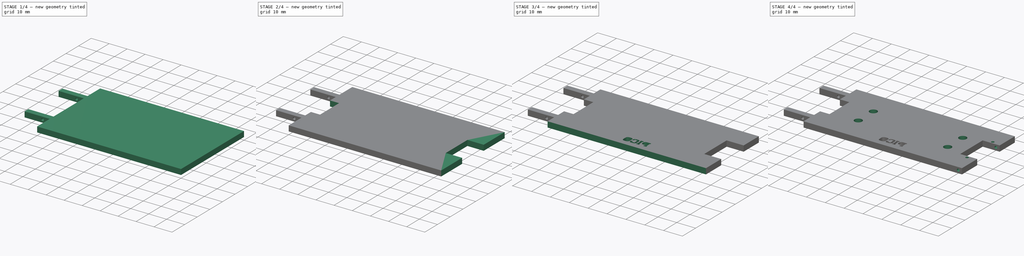
[diagram: build sequence overview — one tinted view per stage of 4, left to right]
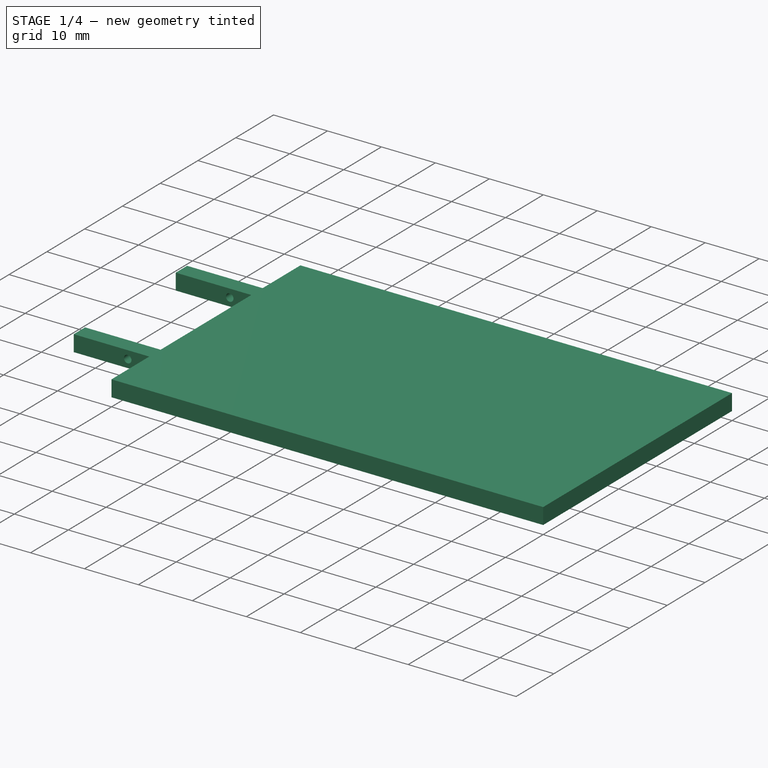
[diagram: stage 1 of 4 — iso view after this stage's code; geometry added in this stage tinted green]
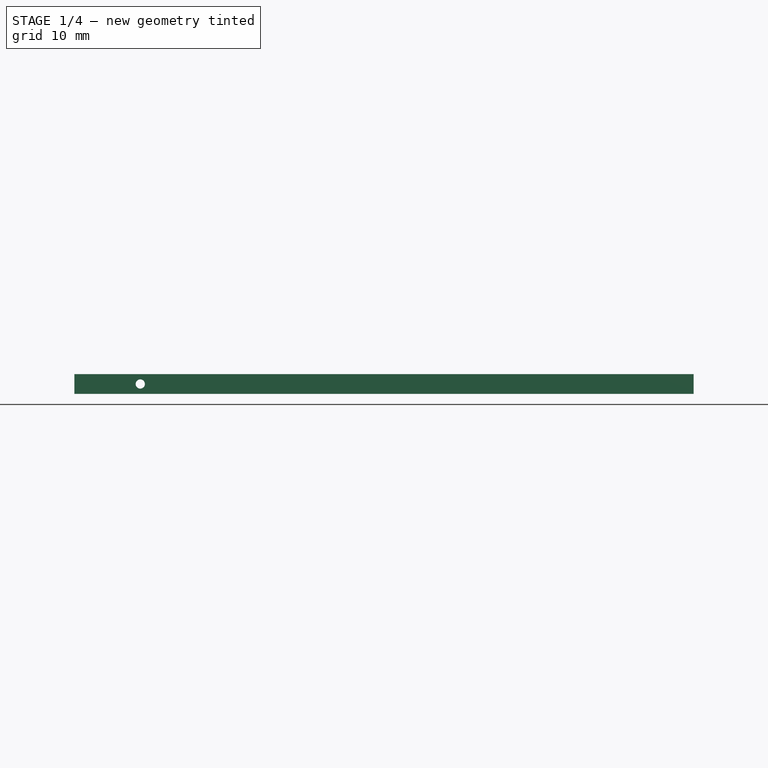
[diagram: stage 1 of 4 — front view after this stage's code; geometry added in this stage tinted green]
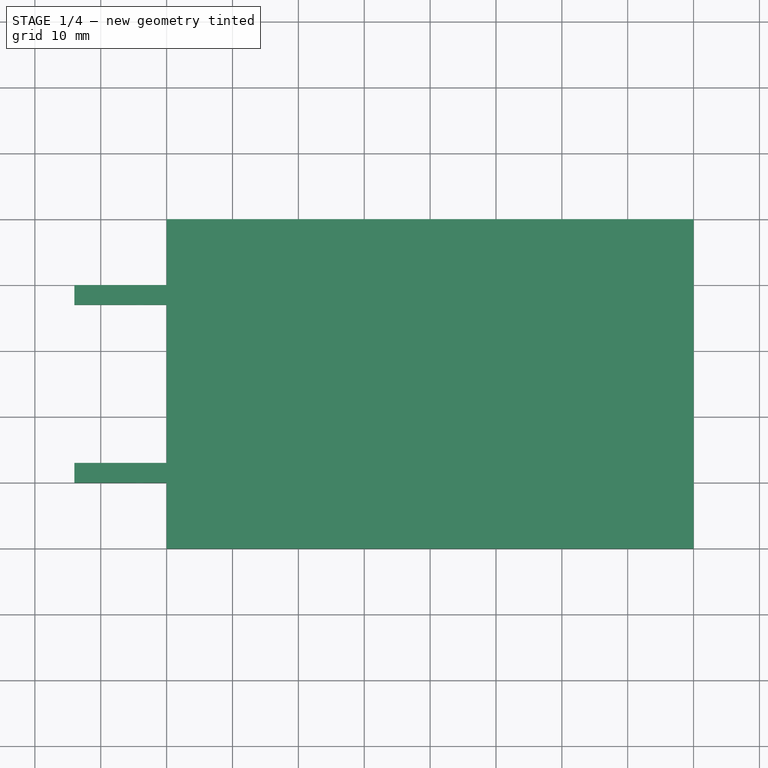
[diagram: stage 1 of 4 — top view after this stage's code; geometry added in this stage tinted green]
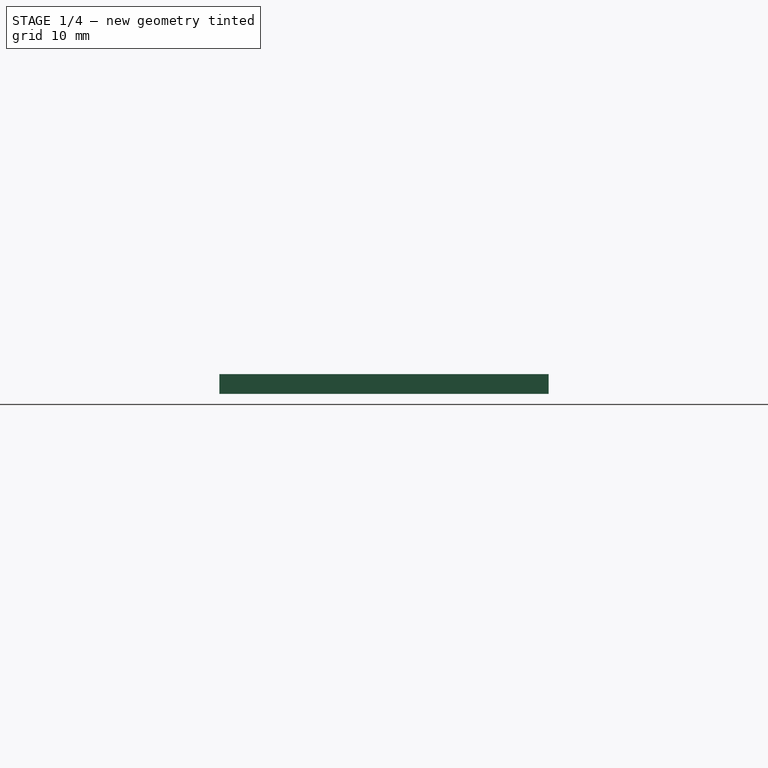
[diagram: stage 1 of 4 — right view after this stage's code; geometry added in this stage tinted green]
FCSTD DOCUMENT  (FreeCAD 1.0R38641 +468 (Git))
Label: plaque_haut_pico
License: All rights reserved
LicenseURL: https://en.wikipedia.org/wiki/All_rights_reserved
objects: Sketcher::SketchObject×11, PartDesign::Pocket×8, PartDesign::Pad×3, Part::Part2DObjectPython×1, PartDesign::CoordinateSystem×1, PartDesign::Body×1
note: 58 computed .brp shape members not serialized (recipe doc carries the construction recipe); baked Part::Feature solids carry a one-line shape summary decoded from their .brp

FEATURE [Sketcher::SketchObject] Sketch
  ArcFitTolerance = 1e-06
  AttachmentSupport = -> [XY_Plane]
  FullyConstrained = true
  MakeInternals = false
  MapMode = 5
  sketch-geometry (4):
    g0: LineSegment StartX=0 StartY=0 StartZ=0 EndX=80 EndY=0 EndZ=0
    g1: LineSegment StartX=80 StartY=0 StartZ=0 EndX=80 EndY=50 EndZ=0
    g2: LineSegment StartX=80 StartY=50 StartZ=0 EndX=0 EndY=50 EndZ=0
    g3: LineSegment StartX=0 StartY=50 StartZ=0 EndX=0 EndY=0 EndZ=0
  constraints (11):
    c: Coincident(g0,g1)
    c: Coincident(g1,g2)
    c: Coincident(g2,g3)
    c: Coincident(g3,g0)
    c: Horizontal(g0)
    c: Horizontal(g2)
    c: Vertical(g1)
    c: Vertical(g3)
    c: Distance(g1,g3) = 80
    c: Distance(g0,g2) = 50
    c: Coincident(g0,g-1)
FEATURE [PartDesign::Pad] Pad
  Direction = (0,0,1)
  Length = 3
  Length2 = 10
  Profile = -> Sketch
  ReferenceAxis = -> Sketch [N_Axis]
  Refine = true
  Suppressed = false
  Type = 0
FEATURE [Sketcher::SketchObject] Sketch004
  ArcFitTolerance = 1e-06
  FullyConstrained = true
  MakeInternals = false
  MapMode = 5
  Placement = pos=(0,0,0) rot=(0.57735,-0.57735,-0.57735;2.0944rad)
  sketch-geometry (8):
    g0: LineSegment StartX=-40 StartY=3 StartZ=0 EndX=-40 EndY=0 EndZ=0
    g1: LineSegment StartX=-40 StartY=0 StartZ=0 EndX=-37 EndY=0 EndZ=0
    g2: LineSegment StartX=-37 StartY=0 StartZ=0 EndX=-37 EndY=3 EndZ=0
    g3: LineSegment StartX=-37 StartY=3 StartZ=0 EndX=-40 EndY=3 EndZ=0
    g4: LineSegment StartX=-10 StartY=3 StartZ=0 EndX=-13 EndY=3 EndZ=0
    g5: LineSegment StartX=-13 StartY=3 StartZ=0 EndX=-13 EndY=0 EndZ=0
    g6: LineSegment StartX=-13 StartY=0 StartZ=0 EndX=-10 EndY=0 EndZ=0
    g7: LineSegment StartX=-10 StartY=0 StartZ=0 EndX=-10 EndY=3 EndZ=0
  constraints (24):
    c: Coincident(g0,g1)
    c: Coincident(g1,g2)
    c: Coincident(g2,g3)
    c: Coincident(g3,g0)
    c: Vertical(g0)
    c: Vertical(g2)
    c: Horizontal(g1)
    c: Horizontal(g3)
    c: Distance(g0,g2) = 3
    c: Distance(g1,g3) = 3
    c: PointOnObject(g1,g-1)
    c: DistanceX(g-3,g0) = 10
    c: Coincident(g4,g5)
    c: Coincident(g5,g6)
    c: Coincident(g6,g7)
    c: Coincident(g7,g4)
    c: Horizontal(g4)
    c: Horizontal(g6)
    c: Vertical(g5)
    c: Vertical(g7)
    c: Distance(g5,g7) = 3
    c: Distance(g4,g6) = 3
    c: PointOnObject(g5,g-1)
    c: DistanceX(g6,g-1) = 10
FEATURE [PartDesign::Pad] Pad001
  BaseFeature = -> Pad
  Direction = (-1,1e-16,-1e-16)
  Length = 14
  Length2 = 10
  Profile = -> Sketch004
  ReferenceAxis = -> Sketch004 [N_Axis]
  Refine = true
  Suppressed = false
  Type = 0
FEATURE [Sketcher::SketchObject] Sketch005
  ArcFitTolerance = 1e-06
  AttachmentSupport = -> [Pad001]
  FullyConstrained = true
  MakeInternals = false
  MapMode = 5
  Placement = pos=(4.4e-15,40,8.8e-15) rot=(0,0.707107,0.707107;3.14159rad)
  sketch-geometry (1):
    g0: Circle CenterX=4 CenterY=1.5 CenterZ=0 NormalX=0 NormalY=0 NormalZ=1 AngleXU=0 Radius=0.7
  constraints (3):
    c: Diameter(g0) = 1.4
    c: DistanceY(g-1,g0) = 1.5
    c: DistanceX(g-1,g0) = 4
FEATURE [PartDesign::Pocket] Pocket002
  BaseFeature = -> Pad001
  Direction = (0,-1,2e-16)
  Length = 5
  Length2 = 5
  Profile = -> Sketch005
  ReferenceAxis = -> Sketch005 [N_Axis]
  Refine = true
  Suppressed = false
  Type = 1
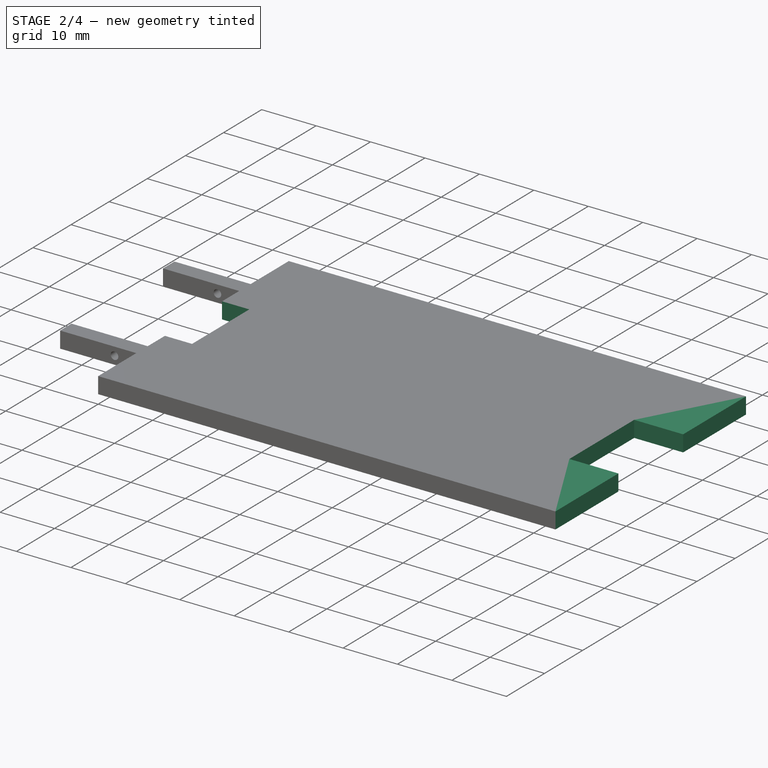
[diagram: stage 2 of 4 — iso view after this stage's code; geometry added in this stage tinted green]
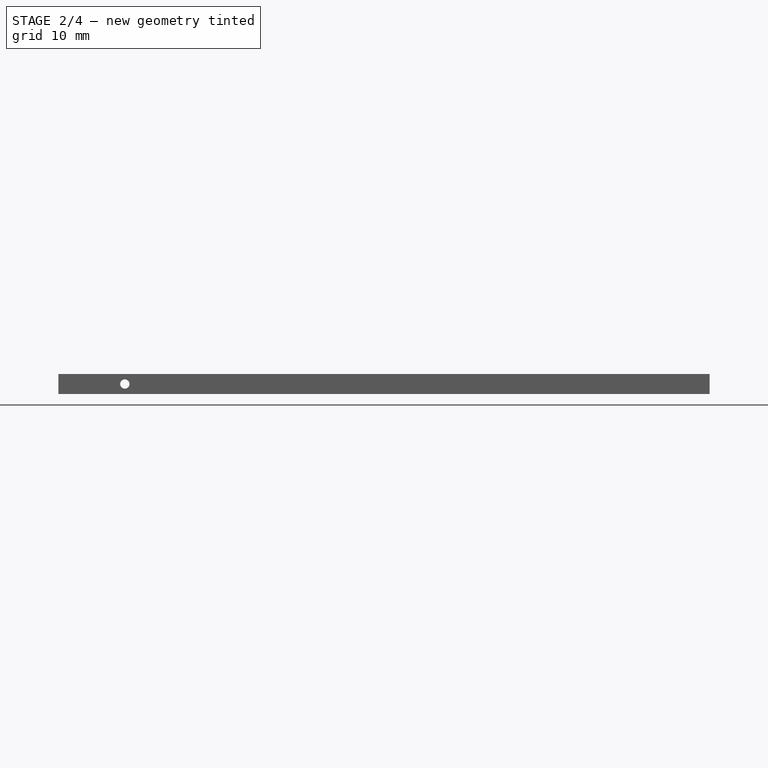
[diagram: stage 2 of 4 — front view after this stage's code; geometry added in this stage tinted green]
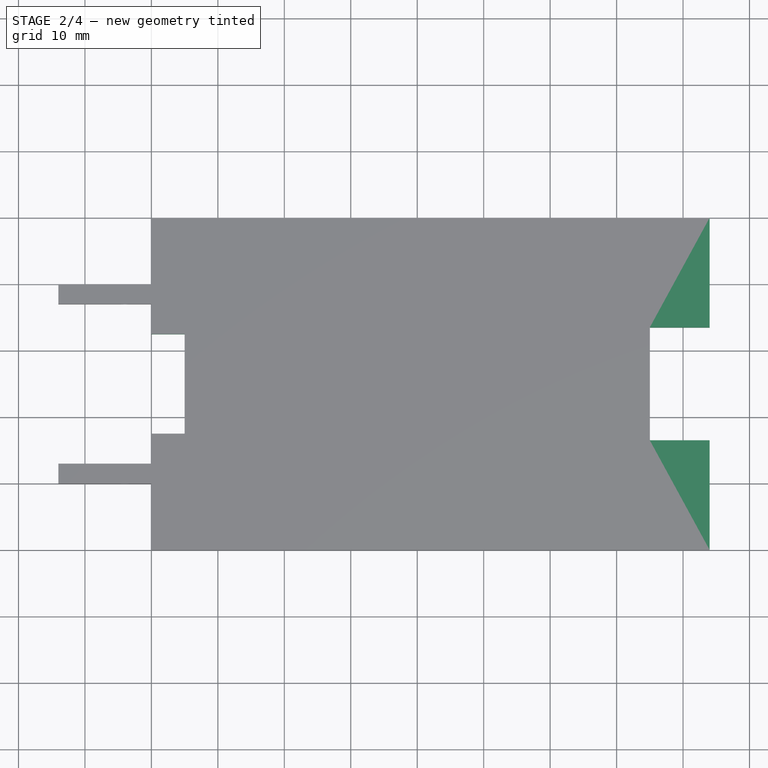
[diagram: stage 2 of 4 — top view after this stage's code; geometry added in this stage tinted green]
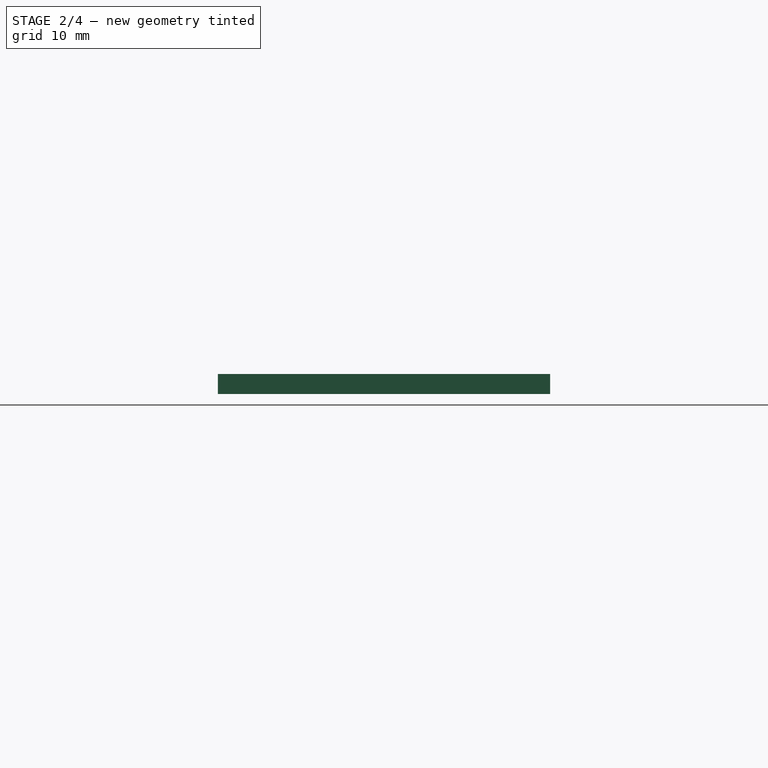
[diagram: stage 2 of 4 — right view after this stage's code; geometry added in this stage tinted green]
FEATURE [Sketcher::SketchObject] Sketch008
  ArcFitTolerance = 1e-06
  FullyConstrained = true
  MakeInternals = false
  MapMode = 5
  Placement = pos=(0,0,3) rot=(0,0,1;0rad)
  sketch-geometry (4):
    g0: LineSegment StartX=0 StartY=32.5 StartZ=0 EndX=0 EndY=17.5 EndZ=0
    g1: LineSegment StartX=0 StartY=17.5 StartZ=0 EndX=5 EndY=17.5 EndZ=0
    g2: LineSegment StartX=5 StartY=17.5 StartZ=0 EndX=5 EndY=32.5 EndZ=0
    g3: LineSegment StartX=5 StartY=32.5 StartZ=0 EndX=0 EndY=32.5 EndZ=0
  constraints (12):
    c: Coincident(g0,g1)
    c: Coincident(g1,g2)
    c: Coincident(g2,g3)
    c: Coincident(g3,g0)
    c: Vertical(g0)
    c: Vertical(g2)
    c: Horizontal(g1)
    c: Horizontal(g3)
    c: Distance(g0,g2) = 5
    c: Distance(g1,g3) = 15
    c: PointOnObject(g0,g-2)
    c: DistanceY(g-1,g0) = 17.5
FEATURE [PartDesign::Pocket] Pocket
  BaseFeature = -> Pocket002
  Direction = (0,0,-1)
  Length = 5
  Length2 = 5
  Profile = -> Sketch008
  ReferenceAxis = -> Sketch008 [N_Axis]
  Refine = true
  Suppressed = false
  Type = 0
FEATURE [Sketcher::SketchObject] Sketch009
  ArcFitTolerance = 1e-06
  AttachmentSupport = -> [Pocket]
  ExternalGeometry = -> [Pocket]
  FullyConstrained = true
  MakeInternals = false
  MapMode = 5
  Placement = pos=(80,0,0) rot=(0.57735,0.57735,0.57735;2.0944rad)
  sketch-geometry (4):
    g0: LineSegment StartX=0 StartY=0 StartZ=0 EndX=50 EndY=0 EndZ=0
    g1: LineSegment StartX=50 StartY=0 StartZ=0 EndX=50 EndY=3 EndZ=0
    g2: LineSegment StartX=50 StartY=3 StartZ=0 EndX=0 EndY=3 EndZ=0
    g3: LineSegment StartX=0 StartY=3 StartZ=0 EndX=0 EndY=0 EndZ=0
  constraints (10):
    c: Coincident(g0,g1)
    c: Coincident(g1,g2)
    c: Coincident(g2,g3)
    c: Coincident(g3,g0)
    c: Horizontal(g0)
    c: Horizontal(g2)
    c: Vertical(g1)
    c: Vertical(g3)
    c: Coincident(g0,g-1)
    c: Coincident(g1,g-3)
FEATURE [PartDesign::Pad] Pad002
  BaseFeature = -> Pocket
  Direction = (1,0,0)
  Length = 4
  Length2 = 10
  Profile = -> Sketch009
  ReferenceAxis = -> Sketch009 [N_Axis]
  Refine = true
  Suppressed = false
  Type = 0
FEATURE [Sketcher::SketchObject] Sketch011
  ArcFitTolerance = 1e-06
  AttachmentSupport = -> [Pad002]
  ExternalGeometry = -> [Pad002]
  FullyConstrained = true
  MakeInternals = false
  MapMode = 5
  Placement = pos=(0,0,3) rot=(0,0,1;0rad)
  sketch-geometry (4):
    g0: LineSegment StartX=75 StartY=33.5 StartZ=0 EndX=75 EndY=16.5 EndZ=0
    g1: LineSegment StartX=75 StartY=16.5 StartZ=0 EndX=84 EndY=16.5 EndZ=0
    g2: LineSegment StartX=84 StartY=16.5 StartZ=0 EndX=84 EndY=33.5 EndZ=0
    g3: LineSegment StartX=84 StartY=33.5 StartZ=0 EndX=75 EndY=33.5 EndZ=0
  constraints (12):
    c: Coincident(g0,g1)
    c: Coincident(g1,g2)
    c: Coincident(g2,g3)
    c: Coincident(g3,g0)
    c: Vertical(g0)
    c: Vertical(g2)
    c: Horizontal(g1)
    c: Horizontal(g3)
    c: Distance(g0,g2) = 9
    c: Distance(g1,g3) = 17
    c: DistanceY(g-1,g0) = 16.5
    c: PointOnObject(g2,g-3)
FEATURE [PartDesign::Pocket] Pocket003
  BaseFeature = -> Pad002
  Direction = (0,0,-1)
  Length = 5
  Length2 = 5
  Profile = -> Sketch011
  ReferenceAxis = -> Sketch011 [N_Axis]
  Refine = true
  Suppressed = false
  Type = 0
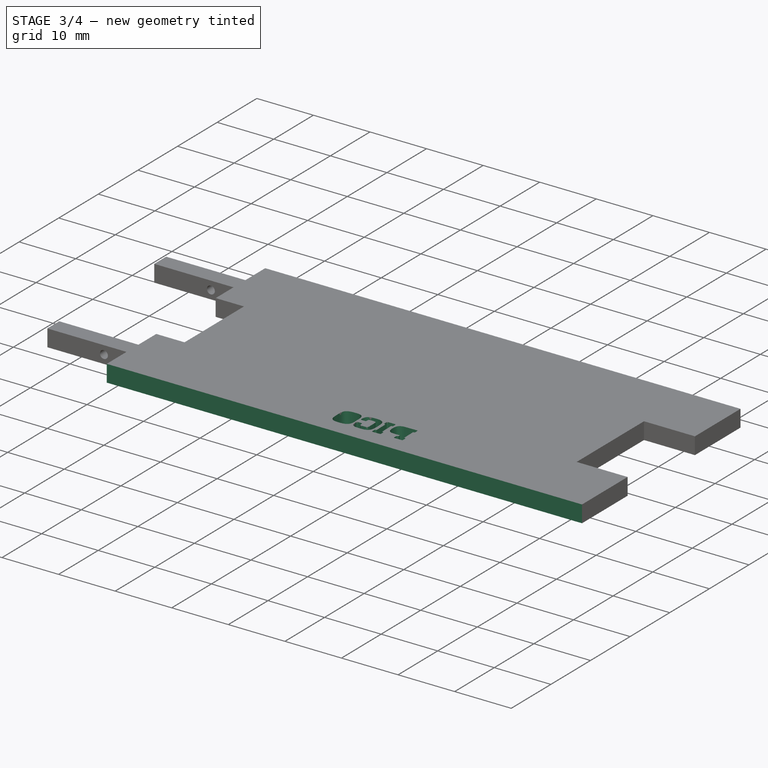
[diagram: stage 3 of 4 — iso view after this stage's code; geometry added in this stage tinted green]
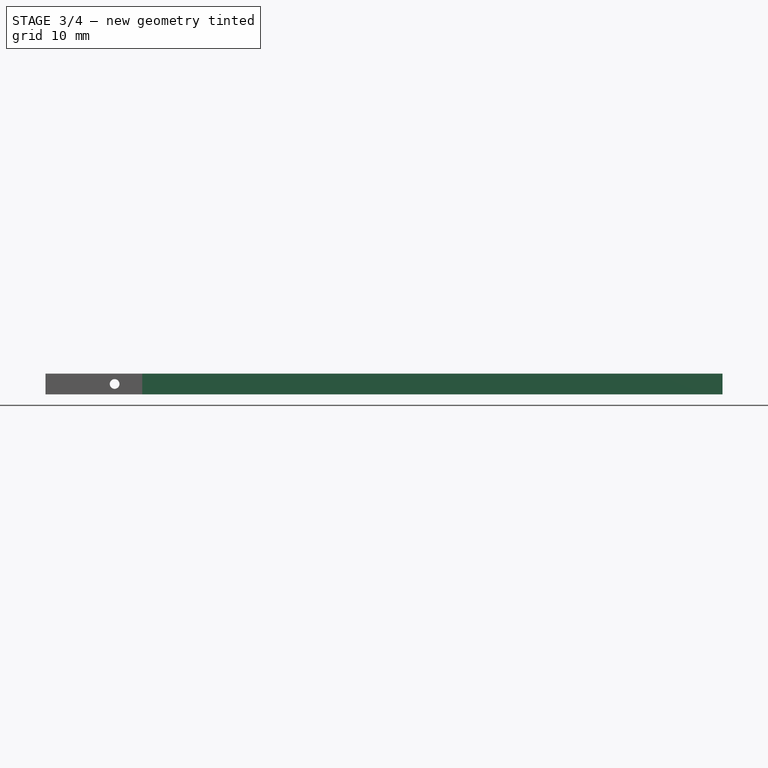
[diagram: stage 3 of 4 — front view after this stage's code; geometry added in this stage tinted green]
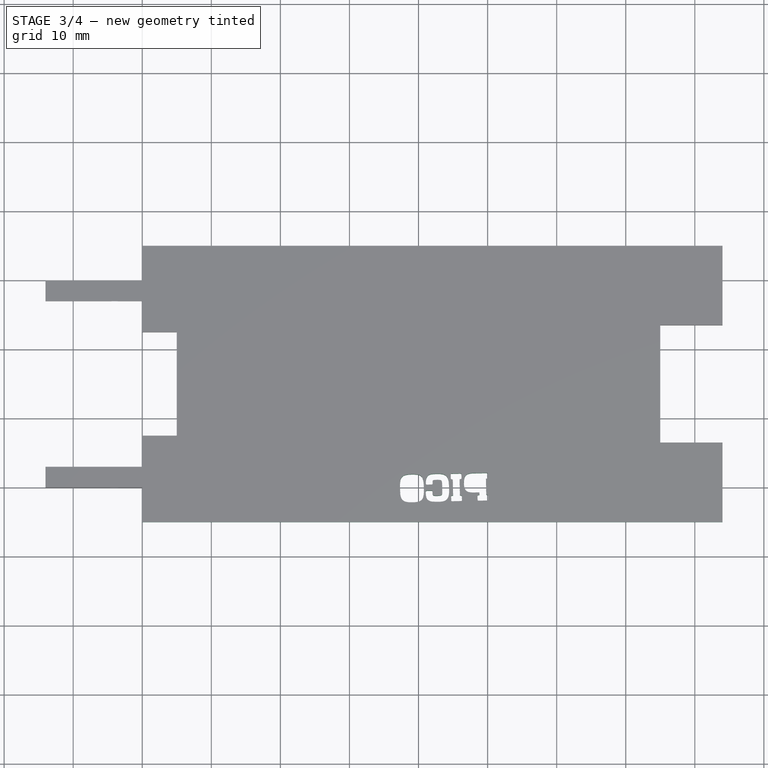
[diagram: stage 3 of 4 — top view after this stage's code; geometry added in this stage tinted green]
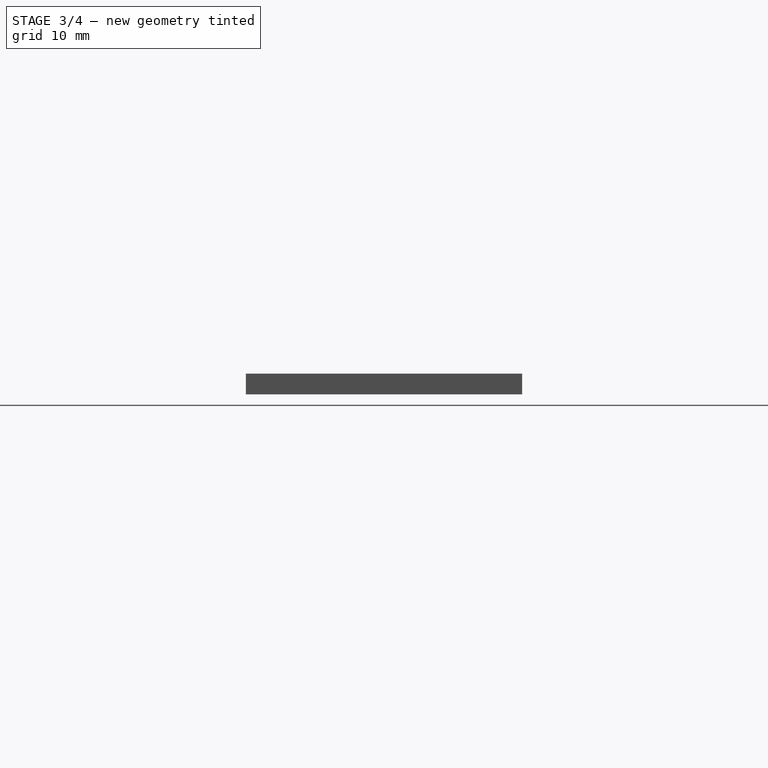
[diagram: stage 3 of 4 — right view after this stage's code; geometry added in this stage tinted green]
FEATURE [Sketcher::SketchObject] Sketch012
  ArcFitTolerance = 1e-06
  AttachmentSupport = -> [Pocket003]
  ExternalGeometry = -> [Pocket003]
  FullyConstrained = true
  MakeInternals = false
  MapMode = 5
  Placement = pos=(0,0,9e-16) rot=(1,0,0;3.14159rad)
  sketch-geometry (8):
    g0: LineSegment StartX=0 StartY=0 StartZ=0 EndX=0 EndY=-5 EndZ=0
    g1: LineSegment StartX=0 StartY=-5 StartZ=0 EndX=84 EndY=-5 EndZ=0
    g2: LineSegment StartX=84 StartY=-5 StartZ=0 EndX=84 EndY=0 EndZ=0
    g3: LineSegment StartX=84 StartY=0 StartZ=0 EndX=0 EndY=0 EndZ=0
    g4: LineSegment StartX=0 StartY=-50 StartZ=0 EndX=84 EndY=-50 EndZ=0
    g5: LineSegment StartX=84 StartY=-50 StartZ=0 EndX=84 EndY=-45 EndZ=0
    g6: LineSegment StartX=84 StartY=-45 StartZ=0 EndX=0 EndY=-45 EndZ=0
    g7: LineSegment StartX=0 StartY=-45 StartZ=0 EndX=0 EndY=-50 EndZ=0
  constraints (22):
    c: Coincident(g0,g1)
    c: Coincident(g1,g2)
    c: Coincident(g2,g3)
    c: Coincident(g3,g0)
    c: Vertical(g0)
    c: Vertical(g2)
    c: Horizontal(g1)
    c: Horizontal(g3)
    c: Distance(g0,g2) = 84
    c: Distance(g1,g3) = 5
    c: Coincident(g0,g-1)
    c: Coincident(g4,g5)
    c: Coincident(g5,g6)
    c: Coincident(g6,g7)
    c: Coincident(g7,g4)
    c: Horizontal(g4)
    c: Horizontal(g6)
    c: Vertical(g5)
    c: Vertical(g7)
    c: Distance(g5,g7) = 84
    c: Distance(g4,g6) = 5
    c: Coincident(g4,g-3)
FEATURE [PartDesign::Pocket] Pocket004
  BaseFeature = -> Pocket003
  Direction = (0,0,1)
  Length = 5
  Length2 = 5
  Profile = -> Sketch012
  ReferenceAxis = -> Sketch012 [N_Axis]
  Refine = true
  Suppressed = false
  Type = 0
FEATURE [Part::Part2DObjectPython] ShapeString  # Draft 2D object (typed FeaturePython)
  FontFile = <userpath>/TM128/T/fonts/ChateaudeGarage_FREE_FOR_PERSONAL_USE_ONLY_1_01.ttf
  Fuse = false
  Justification = 6
  JustificationReference = 0
  KeepLeftMargin = false
  MakeFace = true
  ObliqueAngle = 0
  Placement = pos=(46.66,11.42,0) rot=(0,1,0;3.14159rad)
  ScaleToSize = true
  Size = 4
  String = Pico
  Tracking = 0
FEATURE [Sketcher::SketchObject] Sketch013
  ArcFitTolerance = 1e-06
  AttachmentOffset = pos=(-17,37,-4) rot=(0,0,1;1.5708rad)
  AttachmentSupport = -> [ShapeString]
  FullyConstrained = false
  MakeInternals = false
  MapMode = 45
  Placement = pos=(3.69961,-4.30088,-4) rot=(0,0,1;3.16295rad)
  sketch-geometry (165):
    g0: BSplineCurve PolesCount=3 KnotsCount=2 Degree=2 IsPeriodic=0
    g1: BSplineCurve PolesCount=3 KnotsCount=2 Degree=2 IsPeriodic=0
    g2: BSplineCurve PolesCount=3 KnotsCount=2 Degree=2 IsPeriodic=0
    g3: LineSegment StartX=-46.5273 StartY=-15.42 StartZ=0 EndX=-44.646 EndY=-15.42 EndZ=0
    g4: BSplineCurve PolesCount=3 KnotsCount=2 Degree=2 IsPeriodic=0
    g5: BSplineCurve PolesCount=3 KnotsCount=2 Degree=2 IsPeriodic=0
    g6: LineSegment StartX=-46.66 StartY=-14.7451 StartZ=0 EndX=-46.66 EndY=-15.2873 EndZ=0
    g7: BSplineCurve PolesCount=3 KnotsCount=2 Degree=2 IsPeriodic=0
    g8: LineSegment StartX=-46.3778 StartY=-14.5681 StartZ=0 EndX=-46.5604 EndY=-14.6122 EndZ=0
    g9: LineSegment StartX=-46.3778 StartY=-12.2719 StartZ=0 EndX=-46.3778 EndY=-14.5681 EndZ=0
    g10: LineSegment StartX=-46.5604 StartY=-12.2222 StartZ=0 EndX=-46.3778 EndY=-12.2719 EndZ=0
    g11: BSplineCurve PolesCount=3 KnotsCount=2 Degree=2 IsPeriodic=0
    g12: LineSegment StartX=-46.66 StartY=-11.5527 StartZ=0 EndX=-46.66 EndY=-12.0949 EndZ=0
    g13: BSplineCurve PolesCount=3 KnotsCount=2 Degree=2 IsPeriodic=0
    g14: BSplineCurve PolesCount=3 KnotsCount=2 Degree=2 IsPeriodic=0
    g15: LineSegment StartX=-45.2436 StartY=-11.42 StartZ=0 EndX=-46.5273 EndY=-11.42 EndZ=0
    g16: BSplineCurve PolesCount=3 KnotsCount=2 Degree=2 IsPeriodic=0
    g17: BSplineCurve PolesCount=3 KnotsCount=2 Degree=2 IsPeriodic=0
    g18: LineSegment StartX=-45.1052 StartY=-12.0909 StartZ=0 EndX=-45.1052 EndY=-11.552 EndZ=0
    g19: BSplineCurve PolesCount=3 KnotsCount=2 Degree=2 IsPeriodic=0
    g20: BSplineCurve PolesCount=3 KnotsCount=2 Degree=2 IsPeriodic=0
    g21: LineSegment StartX=-45.3929 StartY=-12.2669 StartZ=0 EndX=-45.2048 EndY=-12.2174 EndZ=0
    g22: LineSegment StartX=-45.3929 StartY=-12.6188 StartZ=0 EndX=-45.3929 EndY=-12.2669 EndZ=0
    g23: LineSegment StartX=-44.646 StartY=-12.6188 StartZ=0 EndX=-45.3929 EndY=-12.6188 EndZ=0
    g24: BSplineCurve PolesCount=3 KnotsCount=2 Degree=2 IsPeriodic=0
    g25: BSplineCurve PolesCount=3 KnotsCount=2 Degree=2 IsPeriodic=0
    g26: BSplineCurve PolesCount=3 KnotsCount=2 Degree=2 IsPeriodic=0
    g27: BSplineCurve PolesCount=3 KnotsCount=2 Degree=2 IsPeriodic=0
    g28: BSplineCurve PolesCount=3 KnotsCount=2 Degree=2 IsPeriodic=0
    g29: BSplineCurve PolesCount=3 KnotsCount=2 Degree=2 IsPeriodic=0
    g30: BSplineCurve PolesCount=3 KnotsCount=2 Degree=2 IsPeriodic=0
    g31: BSplineCurve PolesCount=3 KnotsCount=2 Degree=2 IsPeriodic=0
    g32: BSplineCurve PolesCount=3 KnotsCount=2 Degree=2 IsPeriodic=0
    g33: LineSegment StartX=-45.3929 StartY=-13.4949 StartZ=0 EndX=-44.646 EndY=-13.4949 EndZ=0
    g34: LineSegment StartX=-45.3929 StartY=-14.5439 StartZ=0 EndX=-45.3929 EndY=-13.4949 EndZ=0
    g35: LineSegment StartX=-44.646 StartY=-14.5439 StartZ=0 EndX=-45.3929 EndY=-14.5439 EndZ=0
    g36: LineSegment StartX=-44.6182 StartY=-14.5439 StartZ=0 EndX=-44.646 EndY=-14.5439 EndZ=0
    g37: BSplineCurve PolesCount=3 KnotsCount=2 Degree=2 IsPeriodic=0
    g38: BSplineCurve PolesCount=3 KnotsCount=2 Degree=2 IsPeriodic=0
    g39: BSplineCurve PolesCount=3 KnotsCount=2 Degree=2 IsPeriodic=0
    g40: BSplineCurve PolesCount=3 KnotsCount=2 Degree=2 IsPeriodic=0
    g41: BSplineCurve PolesCount=3 KnotsCount=2 Degree=2 IsPeriodic=0
    g42: LineSegment StartX=-41.5773 StartY=-14.5681 StartZ=0 EndX=-41.5773 EndY=-12.2719 EndZ=0
    g43: LineSegment StartX=-41.3893 StartY=-14.6122 StartZ=0 EndX=-41.5773 EndY=-14.5681 EndZ=0
    g44: BSplineCurve PolesCount=3 KnotsCount=2 Degree=2 IsPeriodic=0
    g45: BSplineCurve PolesCount=3 KnotsCount=2 Degree=2 IsPeriodic=0
    g46: LineSegment StartX=-41.2897 StartY=-15.2873 StartZ=0 EndX=-41.2897 EndY=-14.7451 EndZ=0
    g47: BSplineCurve PolesCount=3 KnotsCount=2 Degree=2 IsPeriodic=0
    g48: BSplineCurve PolesCount=3 KnotsCount=2 Degree=2 IsPeriodic=0
    g49: LineSegment StartX=-42.7117 StartY=-15.42 StartZ=0 EndX=-41.428 EndY=-15.42 EndZ=0
    g50: BSplineCurve PolesCount=3 KnotsCount=2 Degree=2 IsPeriodic=0
    g51: BSplineCurve PolesCount=3 KnotsCount=2 Degree=2 IsPeriodic=0
    g52: LineSegment StartX=-42.8444 StartY=-14.7451 StartZ=0 EndX=-42.8444 EndY=-15.2873 EndZ=0
    g53: BSplineCurve PolesCount=3 KnotsCount=2 Degree=2 IsPeriodic=0
    g54: LineSegment StartX=-42.5622 StartY=-14.5681 StartZ=0 EndX=-42.7448 EndY=-14.6122 EndZ=0
    g55: LineSegment StartX=-42.5622 StartY=-12.2719 StartZ=0 EndX=-42.5622 EndY=-14.5681 EndZ=0
    g56: LineSegment StartX=-42.7448 StartY=-12.2222 StartZ=0 EndX=-42.5622 EndY=-12.2719 EndZ=0
    g57: BSplineCurve PolesCount=3 KnotsCount=2 Degree=2 IsPeriodic=0
    g58: LineSegment StartX=-42.8444 StartY=-11.5527 StartZ=0 EndX=-42.8444 EndY=-12.0949 EndZ=0
    g59: BSplineCurve PolesCount=3 KnotsCount=2 Degree=2 IsPeriodic=0
    g60: BSplineCurve PolesCount=3 KnotsCount=2 Degree=2 IsPeriodic=0
    g61: LineSegment StartX=-41.428 StartY=-11.42 StartZ=0 EndX=-42.7117 EndY=-11.42 EndZ=0
    g62: BSplineCurve PolesCount=3 KnotsCount=2 Degree=2 IsPeriodic=0
    g63: BSplineCurve PolesCount=3 KnotsCount=2 Degree=2 IsPeriodic=0
    g64: LineSegment StartX=-41.2897 StartY=-12.0949 StartZ=0 EndX=-41.2897 EndY=-11.5527 EndZ=0
    g65: BSplineCurve PolesCount=3 KnotsCount=2 Degree=2 IsPeriodic=0
    g66: BSplineCurve PolesCount=3 KnotsCount=2 Degree=2 IsPeriodic=0
    g67: LineSegment StartX=-41.5773 StartY=-12.2719 StartZ=0 EndX=-41.3893 EndY=-12.2222 EndZ=0
    g68: LineSegment StartX=-37.6252 StartY=-12.8869 StartZ=0 EndX=-37.6252 EndY=-12.6433 EndZ=0
    g69: BSplineCurve PolesCount=3 KnotsCount=2 Degree=2 IsPeriodic=0
    g70: BSplineCurve PolesCount=3 KnotsCount=2 Degree=2 IsPeriodic=0
    g71: LineSegment StartX=-38.4774 StartY=-13.0196 StartZ=0 EndX=-37.7636 EndY=-13.0196 EndZ=0
    g72: BSplineCurve PolesCount=3 KnotsCount=2 Degree=2 IsPeriodic=0
    g73: BSplineCurve PolesCount=3 KnotsCount=2 Degree=2 IsPeriodic=0
    g74: LineSegment StartX=-38.6103 StartY=-12.6821 StartZ=0 EndX=-38.6103 EndY=-12.8869 EndZ=0
    g75: BSplineCurve PolesCount=3 KnotsCount=2 Degree=2 IsPeriodic=0
    g76: BSplineCurve PolesCount=3 KnotsCount=2 Degree=2 IsPeriodic=0
    g77: BSplineCurve PolesCount=3 KnotsCount=2 Degree=2 IsPeriodic=0
    g78: BSplineCurve PolesCount=3 KnotsCount=2 Degree=2 IsPeriodic=0
    g79: BSplineCurve PolesCount=3 KnotsCount=2 Degree=2 IsPeriodic=0
    g80: BSplineCurve PolesCount=3 KnotsCount=2 Degree=2 IsPeriodic=0
    g81: BSplineCurve PolesCount=3 KnotsCount=2 Degree=2 IsPeriodic=0
    g82: BSplineCurve PolesCount=3 KnotsCount=2 Degree=2 IsPeriodic=0
    g83: LineSegment StartX=-40.0267 StartY=-13.8521 StartZ=0 EndX=-40.0267 EndY=-13.0207 EndZ=0
    g84: BSplineCurve PolesCount=3 KnotsCount=2 Degree=2 IsPeriodic=0
    g85: BSplineCurve PolesCount=3 KnotsCount=2 Degree=2 IsPeriodic=0
    g86: BSplineCurve PolesCount=3 KnotsCount=2 Degree=2 IsPeriodic=0
    g87: BSplineCurve PolesCount=3 KnotsCount=2 Degree=2 IsPeriodic=0
    g88: BSplineCurve PolesCount=3 KnotsCount=2 Degree=2 IsPeriodic=0
    g89: BSplineCurve PolesCount=3 KnotsCount=2 Degree=2 IsPeriodic=0
    g90: BSplineCurve PolesCount=3 KnotsCount=2 Degree=2 IsPeriodic=0
    g91: BSplineCurve PolesCount=3 KnotsCount=2 Degree=2 IsPeriodic=0
    g92: LineSegment StartX=-38.649 StartY=-14.0358 StartZ=0 EndX=-38.649 EndY=-14.2404 EndZ=0
    g93: BSplineCurve PolesCount=3 KnotsCount=2 Degree=2 IsPeriodic=0
    g94: BSplineCurve PolesCount=3 KnotsCount=2 Degree=2 IsPeriodic=0
    g95: LineSegment StartX=-37.8023 StartY=-13.9031 StartZ=0 EndX=-38.5163 EndY=-13.9031 EndZ=0
    g96: BSplineCurve PolesCount=3 KnotsCount=2 Degree=2 IsPeriodic=0
    g97: BSplineCurve PolesCount=3 KnotsCount=2 Degree=2 IsPeriodic=0
    g98: LineSegment StartX=-37.6695 StartY=-14.2404 StartZ=0 EndX=-37.6695 EndY=-14.0358 EndZ=0
    g99: LineSegment StartX=-37.6695 StartY=-14.246 StartZ=0 EndX=-37.6695 EndY=-14.2404 EndZ=0
    g100: BSplineCurve PolesCount=3 KnotsCount=2 Degree=2 IsPeriodic=0
    g101: BSplineCurve PolesCount=3 KnotsCount=2 Degree=2 IsPeriodic=0
    g102: BSplineCurve PolesCount=3 KnotsCount=2 Degree=2 IsPeriodic=0
    g103: BSplineCurve PolesCount=3 KnotsCount=2 Degree=2 IsPeriodic=0
    g104: BSplineCurve PolesCount=3 KnotsCount=2 Degree=2 IsPeriodic=0
    g105: BSplineCurve PolesCount=3 KnotsCount=2 Degree=2 IsPeriodic=0
    g106: BSplineCurve PolesCount=3 KnotsCount=2 Degree=2 IsPeriodic=0
    g107: BSplineCurve PolesCount=3 KnotsCount=2 Degree=2 IsPeriodic=0
    g108: BSplineCurve PolesCount=3 KnotsCount=2 Degree=2 IsPeriodic=0
    g109: BSplineCurve PolesCount=3 KnotsCount=2 Degree=2 IsPeriodic=0
    g110: LineSegment StartX=-41.0116 StartY=-12.994 StartZ=0 EndX=-41.0116 EndY=-13.851 EndZ=0
    g111: LineSegment StartX=-41.0116 StartY=-12.9886 StartZ=0 EndX=-41.0116 EndY=-12.994 EndZ=0
    g112: BSplineCurve PolesCount=3 KnotsCount=2 Degree=2 IsPeriodic=0
    g113: BSplineCurve PolesCount=3 KnotsCount=2 Degree=2 IsPeriodic=0
    g114: BSplineCurve PolesCount=3 KnotsCount=2 Degree=2 IsPeriodic=0
    g115: BSplineCurve PolesCount=3 KnotsCount=2 Degree=2 IsPeriodic=0
    g116: BSplineCurve PolesCount=3 KnotsCount=2 Degree=2 IsPeriodic=0
    g117: LineSegment StartX=-39.3075 StartY=-11.3854 StartZ=0 EndX=-39.5065 EndY=-11.3854 EndZ=0
    g118: LineSegment StartX=-39.158 StartY=-11.3854 StartZ=0 EndX=-39.3075 EndY=-11.3854 EndZ=0
    g119: BSplineCurve PolesCount=3 KnotsCount=2 Degree=2 IsPeriodic=0
    g120: BSplineCurve PolesCount=3 KnotsCount=2 Degree=2 IsPeriodic=0
    g121: BSplineCurve PolesCount=3 KnotsCount=2 Degree=2 IsPeriodic=0
    g122: BSplineCurve PolesCount=3 KnotsCount=2 Degree=2 IsPeriodic=0
    g123: BSplineCurve PolesCount=3 KnotsCount=2 Degree=2 IsPeriodic=0
    g124: BSplineCurve PolesCount=3 KnotsCount=2 Degree=2 IsPeriodic=0
    g125: BSplineCurve PolesCount=3 KnotsCount=2 Degree=2 IsPeriodic=0
    g126: BSplineCurve PolesCount=3 KnotsCount=2 Degree=2 IsPeriodic=0
    g127: BSplineCurve PolesCount=3 KnotsCount=2 Degree=2 IsPeriodic=0
    g128: LineSegment StartX=-37.3574 StartY=-12.9443 StartZ=0 EndX=-37.3574 EndY=-13.9504 EndZ=0
    g129: BSplineCurve PolesCount=3 KnotsCount=2 Degree=2 IsPeriodic=0
    g130: BSplineCurve PolesCount=3 KnotsCount=2 Degree=2 IsPeriodic=0
    g131: BSplineCurve PolesCount=3 KnotsCount=2 Degree=2 IsPeriodic=0
    g132: BSplineCurve PolesCount=3 KnotsCount=2 Degree=2 IsPeriodic=0
    g133: BSplineCurve PolesCount=3 KnotsCount=2 Degree=2 IsPeriodic=0
    g134: BSplineCurve PolesCount=3 KnotsCount=2 Degree=2 IsPeriodic=0
    g135: BSplineCurve PolesCount=3 KnotsCount=2 Degree=2 IsPeriodic=0
    g136: BSplineCurve PolesCount=3 KnotsCount=2 Degree=2 IsPeriodic=0
    g137: LineSegment StartX=-33.9213 StartY=-13.9504 StartZ=0 EndX=-33.9213 EndY=-12.9443 EndZ=0
    g138: BSplineCurve PolesCount=3 KnotsCount=2 Degree=2 IsPeriodic=0
    g139: BSplineCurve PolesCount=3 KnotsCount=2 Degree=2 IsPeriodic=0
    g140: BSplineCurve PolesCount=3 KnotsCount=2 Degree=2 IsPeriodic=0
    g141: BSplineCurve PolesCount=3 KnotsCount=2 Degree=2 IsPeriodic=0
    g142: LineSegment StartX=-36.3725 StartY=-13.9463 StartZ=0 EndX=-36.3725 EndY=-12.9432 EndZ=0
    g143: BSplineCurve PolesCount=3 KnotsCount=2 Degree=2 IsPeriodic=0
    g144: BSplineCurve PolesCount=3 KnotsCount=2 Degree=2 IsPeriodic=0
    g145: BSplineCurve PolesCount=3 KnotsCount=2 Degree=2 IsPeriodic=0
    g146: BSplineCurve PolesCount=3 KnotsCount=2 Degree=2 IsPeriodic=0
    g147: BSplineCurve PolesCount=3 KnotsCount=2 Degree=2 IsPeriodic=0
    g148: BSplineCurve PolesCount=3 KnotsCount=2 Degree=2 IsPeriodic=0
    g149: BSplineCurve PolesCount=3 KnotsCount=2 Degree=2 IsPeriodic=0
    g150: BSplineCurve PolesCount=3 KnotsCount=2 Degree=2 IsPeriodic=0
    g151: BSplineCurve PolesCount=3 KnotsCount=2 Degree=2 IsPeriodic=0
    g152: BSplineCurve PolesCount=3 KnotsCount=2 Degree=2 IsPeriodic=0
    g153: BSplineCurve PolesCount=3 KnotsCount=2 Degree=2 IsPeriodic=0
    g154: BSplineCurve PolesCount=3 KnotsCount=2 Degree=2 IsPeriodic=0
    g155: BSplineCurve PolesCount=3 KnotsCount=2 Degree=2 IsPeriodic=0
    g156: BSplineCurve PolesCount=3 KnotsCount=2 Degree=2 IsPeriodic=0
    g157: LineSegment StartX=-34.9006 StartY=-12.9432 StartZ=0 EndX=-34.9006 EndY=-14.0072 EndZ=0
    g158: BSplineCurve PolesCount=3 KnotsCount=2 Degree=2 IsPeriodic=0
    g159: BSplineCurve PolesCount=3 KnotsCount=2 Degree=2 IsPeriodic=0
    g160: BSplineCurve PolesCount=3 KnotsCount=2 Degree=2 IsPeriodic=0
    g161: BSplineCurve PolesCount=3 KnotsCount=2 Degree=2 IsPeriodic=0
    g162: BSplineCurve PolesCount=3 KnotsCount=2 Degree=2 IsPeriodic=0
    g163: BSplineCurve PolesCount=3 KnotsCount=2 Degree=2 IsPeriodic=0
    g164: BSplineCurve PolesCount=3 KnotsCount=2 Degree=2 IsPeriodic=0
  constraints (201):
    c: Coincident(g0,g1)
    c: Coincident(g1,g2)
    c: Coincident(g2,g3)
    c: Horizontal(g3)
    c: Coincident(g3,g4)
    c: Coincident(g4,g5)
    c: Coincident(g5,g6)
    c: Vertical(g6)
    c: Coincident(g6,g7)
    c: Coincident(g7,g8)
    c: Coincident(g8,g9)
    c: Vertical(g9)
    c: Coincident(g9,g10)
    c: Coincident(g10,g11)
    c: Coincident(g11,g12)
    c: Vertical(g12)
    c: Coincident(g12,g13)
    c: Coincident(g13,g14)
    c: Coincident(g14,g15)
    c: Horizontal(g15)
    c: Coincident(g15,g16)
    c: Coincident(g16,g17)
    c: Coincident(g17,g18)
    c: Vertical(g18)
    c: Coincident(g18,g19)
    c: Coincident(g19,g20)
    c: Coincident(g20,g21)
    c: Coincident(g21,g22)
    c: Vertical(g22)
    c: Coincident(g22,g23)
    c: Horizontal(g23)
    c: Coincident(g23,g24)
    c: Coincident(g24,g25)
    c: Coincident(g25,g26)
    c: Coincident(g26,g27)
    c: Coincident(g27,g28)
    c: Coincident(g28,g29)
    c: Coincident(g29,g0)
    c: Coincident(g30,g31)
    c: Coincident(g31,g32)
    c: Coincident(g32,g33)
    c: Horizontal(g33)
    c: Coincident(g33,g34)
    c: Vertical(g34)
    c: Coincident(g34,g35)
    c: Horizontal(g35)
    c: Coincident(g35,g36)
    c: Horizontal(g36)
    c: Coincident(g36,g37)
    c: Coincident(g37,g38)
    c: Coincident(g38,g39)
    c: Coincident(g39,g40)
    c: Coincident(g40,g41)
    c: Coincident(g41,g30)
    c: Vertical(g42)
    c: Coincident(g42,g43)
    c: Coincident(g43,g44)
    c: Coincident(g44,g45)
    c: Coincident(g45,g46)
    c: Vertical(g46)
    c: Coincident(g46,g47)
    c: Coincident(g47,g48)
    c: Coincident(g48,g49)
    c: Horizontal(g49)
    c: Coincident(g49,g50)
    c: Coincident(g50,g51)
    c: Coincident(g51,g52)
    c: Vertical(g52)
    c: Coincident(g52,g53)
    c: Coincident(g53,g54)
    c: Coincident(g54,g55)
    c: Vertical(g55)
    c: Coincident(g55,g56)
    c: Coincident(g56,g57)
    c: Coincident(g57,g58)
    c: Vertical(g58)
    c: Coincident(g58,g59)
    c: Coincident(g59,g60)
    c: Coincident(g60,g61)
    c: Horizontal(g61)
    c: Coincident(g61,g62)
    c: Coincident(g62,g63)
    c: Coincident(g63,g64)
    c: Vertical(g64)
    c: Coincident(g64,g65)
    c: Coincident(g65,g66)
    c: Coincident(g66,g67)
    c: Coincident(g67,g42)
    c: Vertical(g68)
    c: Coincident(g68,g69)
    c: Coincident(g69,g70)
    c: Coincident(g70,g71)
    c: Horizontal(g71)
    c: Coincident(g71,g72)
    c: Coincident(g72,g73)
    c: Coincident(g73,g74)
    c: Vertical(g74)
    c: Coincident(g74,g75)
    c: Coincident(g75,g76)
    c: Coincident(g76,g77)
    c: Coincident(g77,g78)
    c: Coincident(g78,g79)
    c: Coincident(g79,g80)
    c: Coincident(g80,g81)
    c: Coincident(g81,g82)
    c: Coincident(g82,g83)
    c: Vertical(g83)
    c: Coincident(g83,g84)
    c: Coincident(g84,g85)
    c: Coincident(g85,g86)
    c: Coincident(g86,g87)
    c: Coincident(g87,g88)
    c: Coincident(g88,g89)
    c: Coincident(g89,g90)
    c: Coincident(g90,g91)
    c: Coincident(g91,g92)
    c: Vertical(g92)
    c: Coincident(g92,g93)
    c: Coincident(g93,g94)
    c: Coincident(g94,g95)
    c: Horizontal(g95)
    c: Coincident(g95,g96)
    c: Coincident(g96,g97)
    c: Coincident(g97,g98)
    c: Vertical(g98)
    c: Coincident(g98,g99)
    c: Vertical(g99)
    c: Coincident(g99,g100)
    c: Coincident(g100,g101)
    c: Coincident(g101,g102)
    c: Coincident(g102,g103)
    c: Coincident(g103,g104)
    c: Coincident(g104,g105)
    c: Coincident(g105,g106)
    c: Coincident(g106,g107)
    c: Coincident(g107,g108)
    c: Coincident(g108,g109)
    c: Coincident(g109,g110)
    c: Vertical(g110)
    c: Coincident(g110,g111)
    c: Vertical(g111)
    c: Coincident(g111,g112)
    c: Coincident(g112,g113)
    c: Coincident(g113,g114)
    c: Coincident(g114,g115)
    c: Coincident(g115,g116)
    c: Coincident(g116,g117)
    c: Horizontal(g117)
    c: Coincident(g117,g118)
    c: Horizontal(g118)
    c: Coincident(g118,g119)
    c: Coincident(g119,g120)
    c: Coincident(g120,g121)
    c: Coincident(g121,g122)
    c: Coincident(g122,g68)
    c: Coincident(g123,g124)
    c: Coincident(g124,g125)
    c: Coincident(g125,g126)
    c: Coincident(g126,g127)
    c: Coincident(g127,g128)
    c: Vertical(g128)
    c: Coincident(g128,g129)
    c: Coincident(g129,g130)
    c: Coincident(g130,g131)
    c: Coincident(g131,g132)
    c: Coincident(g132,g133)
    c: Coincident(g133,g134)
    c: Coincident(g134,g135)
    c: Coincident(g135,g136)
    c: Coincident(g136,g137)
    c: Vertical(g137)
    c: Coincident(g137,g138)
    c: Coincident(g138,g139)
    c: Coincident(g139,g140)
    c: Coincident(g140,g123)
    c: Coincident(g141,g142)
    c: Vertical(g142)
    c: Coincident(g142,g143)
    c: Coincident(g143,g144)
    c: Coincident(g144,g145)
    c: Coincident(g145,g146)
    c: Coincident(g146,g147)
    c: Coincident(g147,g148)
    c: Coincident(g148,g149)
    c: Coincident(g149,g150)
    c: Coincident(g150,g151)
    c: Coincident(g151,g152)
    c: Coincident(g152,g153)
    c: Coincident(g153,g154)
    c: Coincident(g154,g155)
    c: Coincident(g155,g156)
    c: Coincident(g156,g157)
    c: Vertical(g157)
    c: Coincident(g157,g158)
    c: Coincident(g158,g159)
    c: Coincident(g159,g160)
    c: Coincident(g160,g161)
    c: Coincident(g161,g162)
    c: Coincident(g162,g163)
    c: Coincident(g163,g164)
    c: Coincident(g164,g141)
FEATURE [PartDesign::Pocket] Pocket005
  BaseFeature = -> Pocket004
  Direction = (0,0,-1)
  Length = 5
  Length2 = 5
  Midplane = true
  Profile = -> Sketch013
  ReferenceAxis = -> Sketch013 [N_Axis]
  Refine = true
  Suppressed = false
  Type = 1
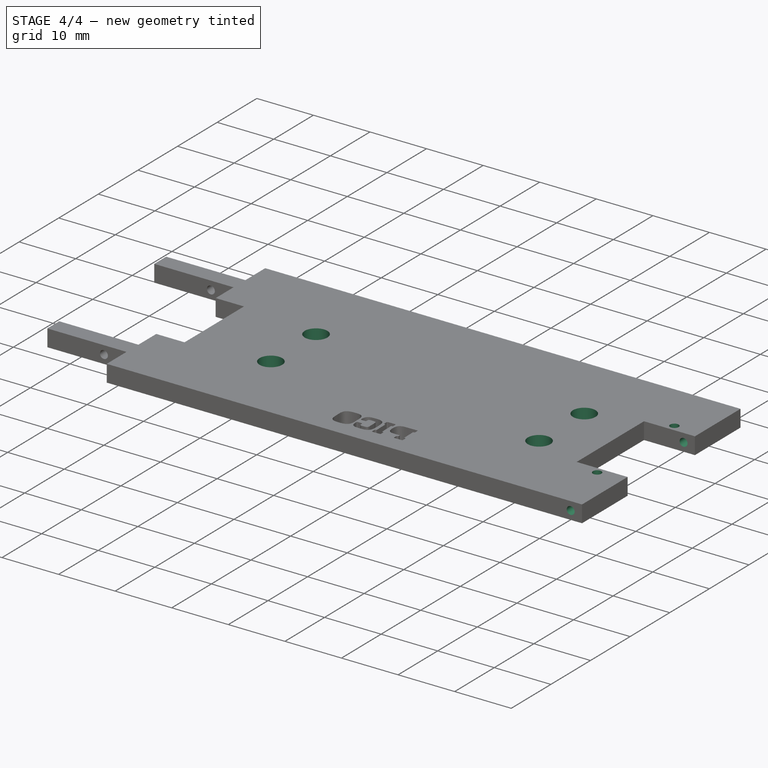
[diagram: stage 4 of 4 — iso view after this stage's code; geometry added in this stage tinted green]
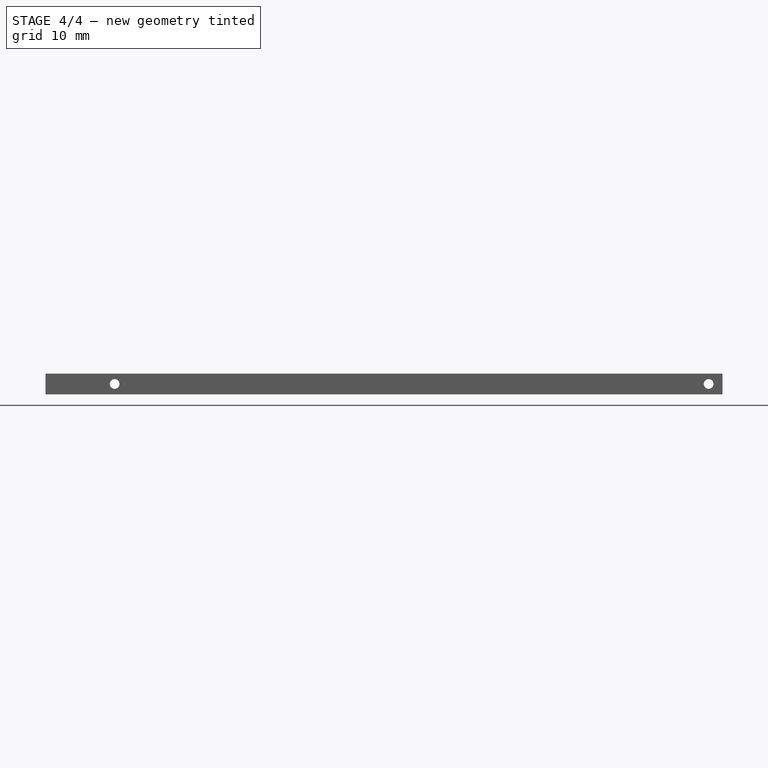
[diagram: stage 4 of 4 — front view after this stage's code; geometry added in this stage tinted green]
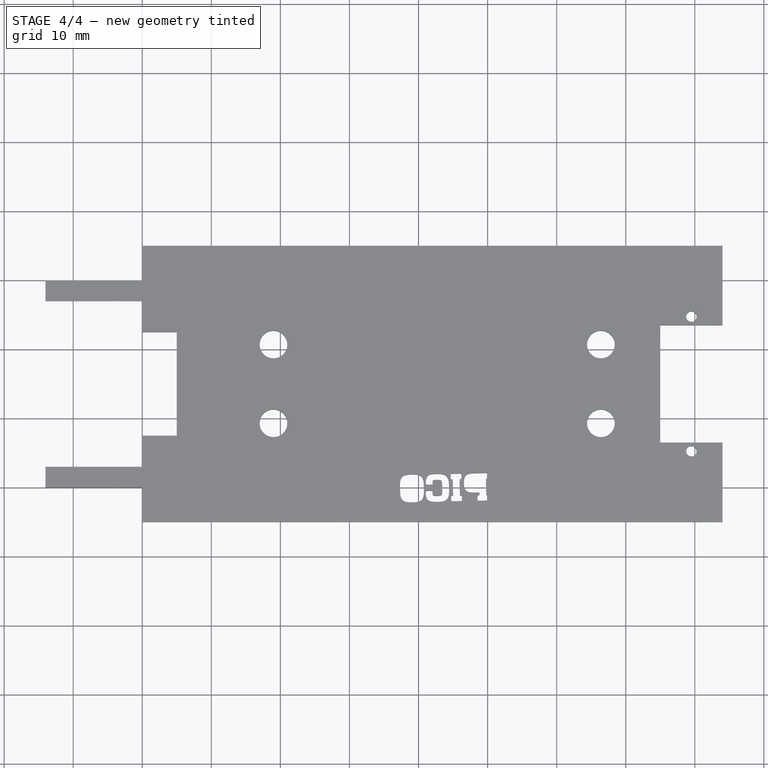
[diagram: stage 4 of 4 — top view after this stage's code; geometry added in this stage tinted green]
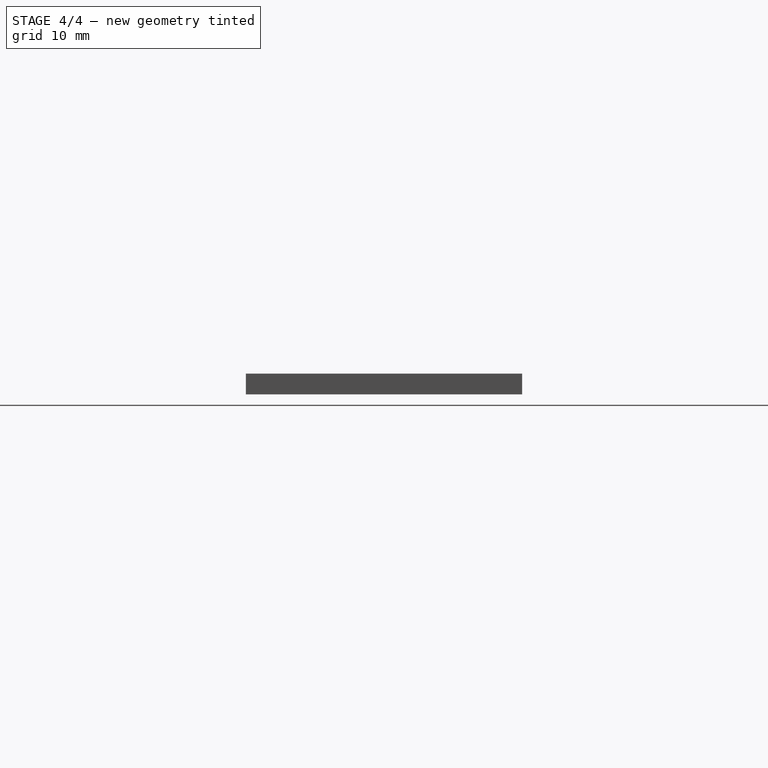
[diagram: stage 4 of 4 — right view after this stage's code; geometry added in this stage tinted green]
FEATURE [Sketcher::SketchObject] Sketch014
  ArcFitTolerance = 1e-06
  AttachmentSupport = -> [Pocket005]
  ExternalGeometry = -> [Pocket005]
  FullyConstrained = true
  MakeInternals = false
  MapMode = 5
  Placement = pos=(0,0,0) rot=(1,0,0;3.14159rad)
  sketch-geometry (4):
    g0: Circle CenterX=19 CenterY=-19.3 CenterZ=0 NormalX=0 NormalY=0 NormalZ=1 AngleXU=0 Radius=2
    g1: Circle CenterX=19 CenterY=-30.7 CenterZ=0 NormalX=0 NormalY=0 NormalZ=1 AngleXU=0 Radius=2
    g2: Circle CenterX=66.4 CenterY=-19.3 CenterZ=0 NormalX=0 NormalY=0 NormalZ=1 AngleXU=0 Radius=2
    g3: Circle CenterX=66.4 CenterY=-30.7 CenterZ=0 NormalX=0 NormalY=0 NormalZ=1 AngleXU=0 Radius=2
  constraints (12):
    c: Diameter(g0) = 4
    c: Diameter(g1) = 4
    c: Diameter(g2) = 4
    c: Diameter(g3) = 4
    c: DistanceX(g0,g2) = 47.4
    c: DistanceX(g1,g3) = 47.4
    c: DistanceY(g1,g0) = 11.4
    c: DistanceY(g3,g2) = 11.4
    c: Vertical(g0,g1)
    c: Horizontal(g0,g2)
    c: DistanceY(g0,g-3) = 14.3
    c: DistanceX(g-3,g0) = 19
FEATURE [PartDesign::Pocket] Pocket006
  BaseFeature = -> Pocket005
  Direction = (0,0,1)
  Length = 5
  Length2 = 5
  Profile = -> Sketch014
  ReferenceAxis = -> Sketch014 [N_Axis]
  Refine = true
  Suppressed = false
  Type = 0
FEATURE [Sketcher::SketchObject] Sketch015
  ArcFitTolerance = 1e-06
  AttachmentSupport = -> [Pocket006]
  ExternalGeometry = -> [Pocket006]
  FullyConstrained = true
  MakeInternals = false
  MapMode = 5
  Placement = pos=(0,0,3) rot=(0,0,1;0rad)
  sketch-geometry (2):
    g0: Circle CenterX=79.5 CenterY=34.75 CenterZ=0 NormalX=0 NormalY=0 NormalZ=1 AngleXU=0 Radius=0.75
    g1: Circle CenterX=79.5 CenterY=15.25 CenterZ=0 NormalX=0 NormalY=0 NormalZ=1 AngleXU=0 Radius=0.75
  constraints (6):
    c: Diameter(g0) = 1.5
    c: Diameter(g1) = 1.5
    c: Vertical(g0,g1)
    c: DistanceY(g1,g0) = 19.5
    c: DistanceY(g-3,g0) = 1.25
    c: DistanceX(g0,g-3) = 4.5
FEATURE [PartDesign::Pocket] Pocket007
  BaseFeature = -> Pocket006
  Direction = (0,0,-1)
  Length = 5
  Length2 = 5
  Profile = -> Sketch015
  ReferenceAxis = -> Sketch015 [N_Axis]
  Refine = true
  Suppressed = false
  Type = 0
FEATURE [Sketcher::SketchObject] Sketch016
  ArcFitTolerance = 1e-06
  AttachmentSupport = -> [Pocket007]
  ExternalGeometry = -> [Pocket007]
  FullyConstrained = true
  MakeInternals = false
  MapMode = 5
  Placement = pos=(0,5,0) rot=(1,0,0;1.5708rad)
  sketch-geometry (1):
    g0: Circle CenterX=82 CenterY=1.5 CenterZ=0 NormalX=0 NormalY=0 NormalZ=1 AngleXU=0 Radius=0.7
  constraints (3):
    c: Diameter(g0) = 1.4
    c: DistanceX(g0,g-3) = 2
    c: DistanceY(g0,g-3) = 1.5
FEATURE [PartDesign::Pocket] Pocket008
  BaseFeature = -> Pocket007
  Direction = (0,1,-2e-16)
  Length = 5
  Length2 = 5
  Profile = -> Sketch016
  ReferenceAxis = -> Sketch016 [N_Axis]
  Suppressed = false
  Type = 1
FEATURE [PartDesign::CoordinateSystem] Local_CS
  AttacherType = Attacher::AttachEngine3D
  AttachmentSupport = -> [Pocket008]
  MapMode = 5
  Placement = pos=(84,0,0) rot=(0.57735,0.57735,0.57735;2.0944rad)
FEATURE [PartDesign::Body] Body  label="Corps"
  AllowCompound = false
  Group = -> [Sketch,Pad,Sketch004,Pad001,Sketch005,Pocket002,Sketch008,Pocket,Sketch009,Pad002,Sketch011,Pocket003,Sketch012,Pocket004,Sketch013,Pocket005,Sketch014,Pocket006,Sketch015,Pocket007,Sketch016,Pocket008,Local_CS]
  Origin = -> Origin
  Tip = -> Pocket008
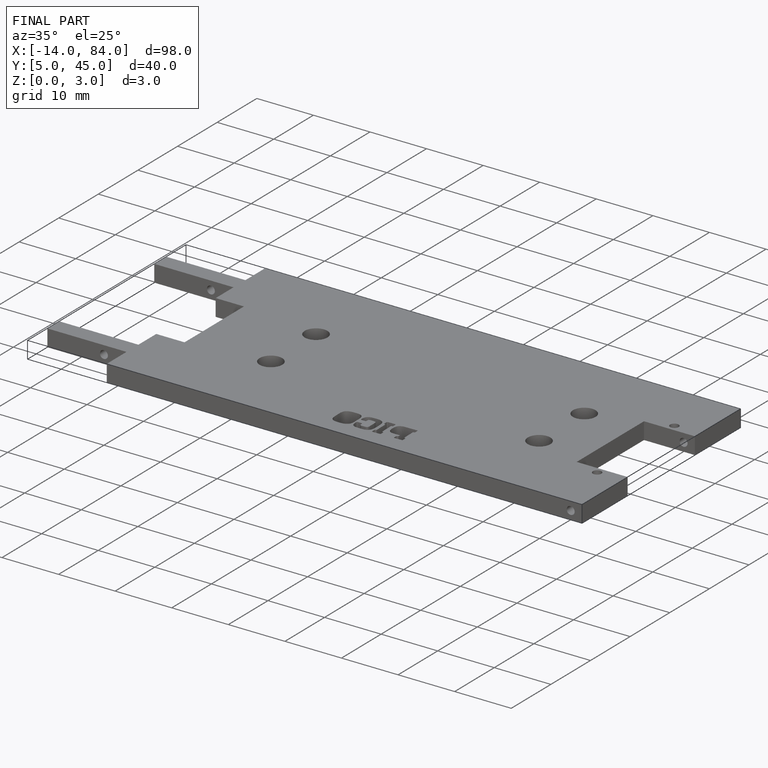
[diagram: finished part — iso view with bounding-box wireframe]
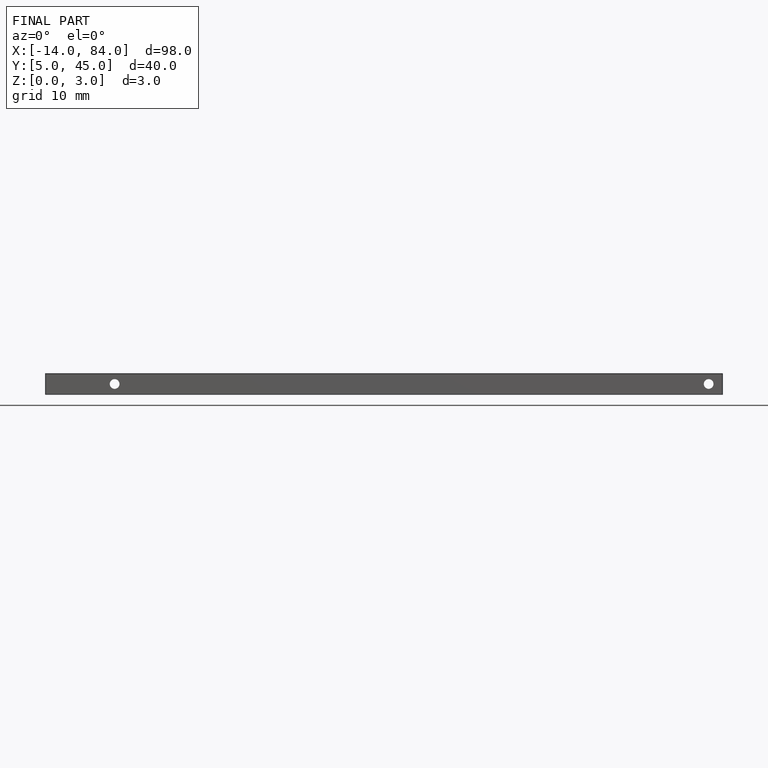
[diagram: finished part — front view with bounding-box wireframe]
